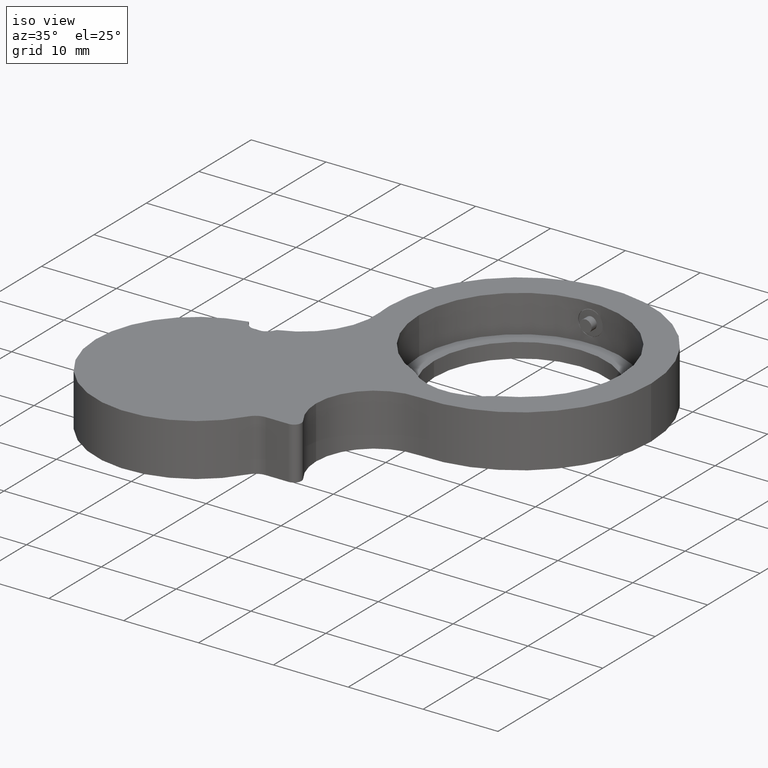
[diagram: clean part render]
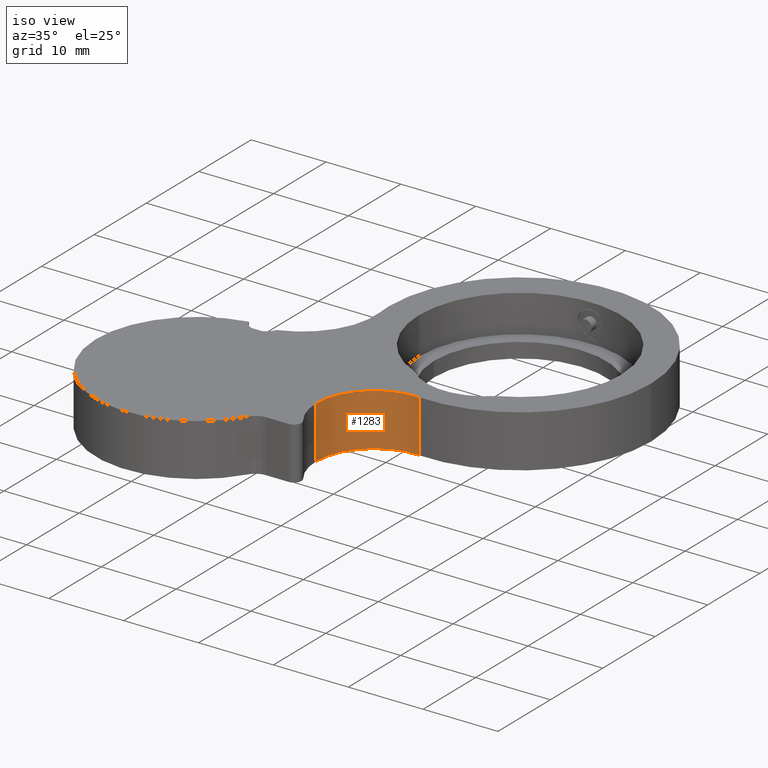
[diagram: same view with one face highlighted and labeled with its STEP entity id]
A machine part, iso view. The second image highlights one B-rep face of the part: STEP entity #1283.
In plain terms, the highlighted cylindrical surface (partial cylindrical patch) has radius 7.8 mm, axis along (-0, -0, -1).
Its self-contained STEP definition (entity closure, byte-faithful):
#1 = DIRECTION ( 'NONE',  ( -0.0000000000000000000, -0.0000000000000000000, -1.000000000000000000 ) ) ;
#10 = LINE ( 'NONE', #805, #1271 ) ;
#39 = EDGE_CURVE ( 'NONE', #1090, #1153, #148, .T. ) ;
#111 = EDGE_CURVE ( 'NONE', #1098, #1153, #1391, .T. ) ;
#148 = CIRCLE ( 'NONE', #1037, 7.800000000000001600 ) ;
#172 = CYLINDRICAL_SURFACE ( 'NONE', #660, 7.799999999999999800 ) ;
#229 = FACE_OUTER_BOUND ( 'NONE', #1069, .T. ) ;
#243 = ORIENTED_EDGE ( 'NONE', *, *, #111, .F. ) ;
#273 = CARTESIAN_POINT ( 'NONE',  ( 13.42352903495107000, 1.514041398649560200, 52.50000000000000700 ) ) ;
#298 = DIRECTION ( 'NONE',  ( -1.000000000000000000, 0.0000000000000000000, 0.0000000000000000000 ) ) ;
#339 = DIRECTION ( 'NONE',  ( 1.000000000000000000, 0.0000000000000000000, 0.0000000000000000000 ) ) ;
#500 = DIRECTION ( 'NONE',  ( -0.0000000000000000000, -0.0000000000000000000, -1.000000000000000000 ) ) ;
#513 = ORIENTED_EDGE ( 'NONE', *, *, #942, .T. ) ;
#632 = CARTESIAN_POINT ( 'NONE',  ( 5.068588323488625300, -6.266192582842355900, 52.50000000000000700 ) ) ;
#660 = AXIS2_PLACEMENT_3D ( 'NONE', #1369, #771, #298 ) ;
#722 = CARTESIAN_POINT ( 'NONE',  ( 5.068588323488625300, -6.266192582842355900, 59.50000000000000700 ) ) ;
#771 = DIRECTION ( 'NONE',  ( -0.0000000000000000000, -0.0000000000000000000, -1.000000000000000000 ) ) ;
#805 = CARTESIAN_POINT ( 'NONE',  ( 5.068588323488625300, -6.266192582842355900, 59.50000000000000700 ) ) ;
#839 = VECTOR ( 'NONE', #500, 1000.000000000000000 ) ;
#942 = EDGE_CURVE ( 'NONE', #1020, #1090, #10, .T. ) ;
#1020 = VERTEX_POINT ( 'NONE', #722 ) ;
#1037 = AXIS2_PLACEMENT_3D ( 'NONE', #1089, #1186, #1205 ) ;
#1069 = EDGE_LOOP ( 'NONE', ( #1486, #513, #1214, #243 ) ) ;
#1089 = CARTESIAN_POINT ( 'NONE',  ( 12.86858832348862500, -6.266192582842355900, 52.50000000000000700 ) ) ;
#1090 = VERTEX_POINT ( 'NONE', #632 ) ;
#1098 = VERTEX_POINT ( 'NONE', #1433 ) ;
#1101 = AXIS2_PLACEMENT_3D ( 'NONE', #1278, #1, #339 ) ;
#1107 = CARTESIAN_POINT ( 'NONE',  ( 13.42352903495107000, 1.514041398649560200, 59.50000000000000700 ) ) ;
#1153 = VERTEX_POINT ( 'NONE', #273 ) ;
#1186 = DIRECTION ( 'NONE',  ( -0.0000000000000000000, -0.0000000000000000000, -1.000000000000000000 ) ) ;
#1205 = DIRECTION ( 'NONE',  ( 1.000000000000000000, 0.0000000000000000000, 0.0000000000000000000 ) ) ;
#1214 = ORIENTED_EDGE ( 'NONE', *, *, #39, .T. ) ;
#1260 = DIRECTION ( 'NONE',  ( -0.0000000000000000000, -0.0000000000000000000, -1.000000000000000000 ) ) ;
#1271 = VECTOR ( 'NONE', #1260, 1000.000000000000000 ) ;
#1278 = CARTESIAN_POINT ( 'NONE',  ( 12.86858832348862500, -6.266192582842355900, 59.50000000000000700 ) ) ;
#1283 = ADVANCED_FACE ( 'NONE', ( #229 ), #172, .F. ) ;
#1337 = CIRCLE ( 'NONE', #1101, 7.800000000000001600 ) ;
#1369 = CARTESIAN_POINT ( 'NONE',  ( 12.86858832348862500, -6.266192582842355900, 59.50000000000000700 ) ) ;
#1391 = LINE ( 'NONE', #1107, #839 ) ;
#1404 = EDGE_CURVE ( 'NONE', #1020, #1098, #1337, .T. ) ;
#1433 = CARTESIAN_POINT ( 'NONE',  ( 13.42352903495107000, 1.514041398649560200, 59.50000000000000700 ) ) ;
#1486 = ORIENTED_EDGE ( 'NONE', *, *, #1404, .F. ) ;